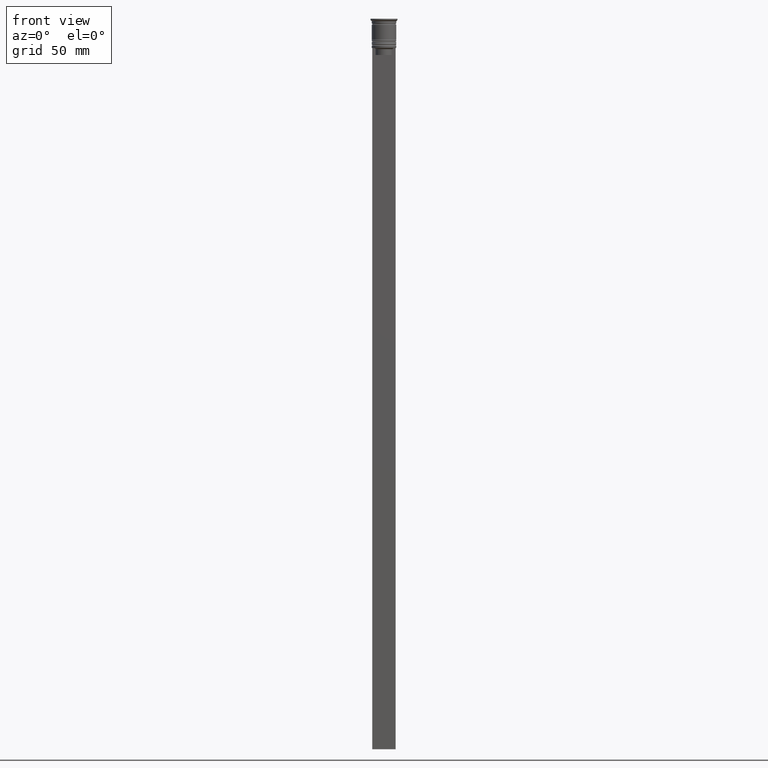
[diagram: clean part render]
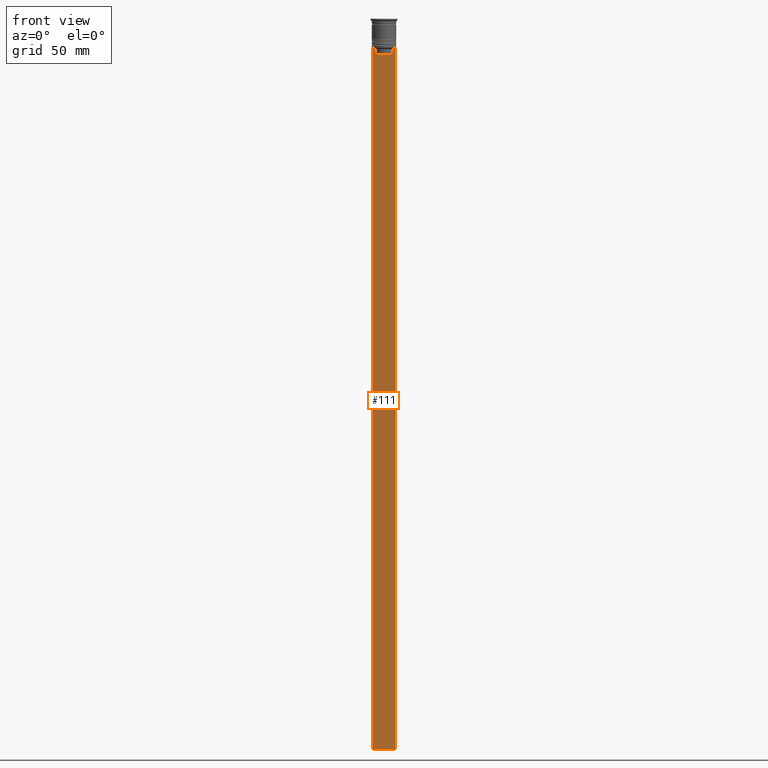
[diagram: same view with one face highlighted and labeled with its STEP entity id]
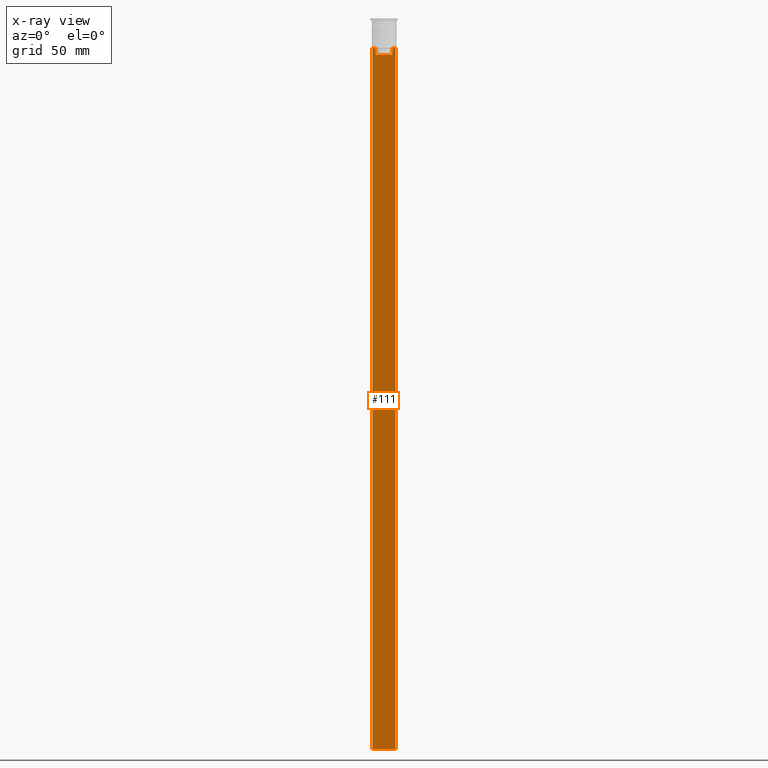
[diagram: x-ray of the same camera — body ghosted, the highlighted face saturated]
A machine part, front view. The second image highlights one B-rep face of the part: STEP entity #111.
The next image is the same camera in x-ray: the body ghosted, the highlighted face saturated — about 0% of this face is hidden behind the body in this view.
In plain terms, the highlighted planar face has unit normal (0, -1, -0).
Its self-contained STEP definition (entity closure, byte-faithful):
#3 = CARTESIAN_POINT ( 'NONE',  ( -4.999999999999999112, -0.5000000000000008882, -2.450124378879110054 ) ) ;
#9 = DIRECTION ( 'NONE',  ( 0.000000000000000000, 0.000000000000000000, -1.000000000000000000 ) ) ;
#66 = VERTEX_POINT ( 'NONE', #2124 ) ;
#102 = EDGE_CURVE ( 'NONE', #1358, #1551, #1675, .T. ) ;
#111 = ADVANCED_FACE ( 'NONE', ( #1998 ), #559, .T. ) ;
#167 = CARTESIAN_POINT ( 'NONE',  ( -4.999999999999999112, -0.5000000000000008882, -312.5000000000000000 ) ) ;
#176 = B_SPLINE_CURVE_WITH_KNOTS ( 'NONE', 3,
 ( #648, #276, #1695, #1738 ),
 .UNSPECIFIED., .F., .F.,
 ( 4, 4 ),
 ( 0.01745179617248909451, 0.01816207215777257411 ),
 .UNSPECIFIED. ) ;
#208 = VECTOR ( 'NONE', #1650, 1000.000000000000000 ) ;
#226 = VERTEX_POINT ( 'NONE', #2078 ) ;
#243 = EDGE_CURVE ( 'NONE', #66, #966, #176, .T. ) ;
#276 = CARTESIAN_POINT ( 'NONE',  ( 3.783746406711540278, -0.5000000000000008882, -12.83343003979123509 ) ) ;
#310 = DIRECTION ( 'NONE',  ( 1.000000000000000000, 0.000000000000000000, 0.000000000000000000 ) ) ;
#328 = VECTOR ( 'NONE', #337, 1000.000000000000000 ) ;
#332 = CARTESIAN_POINT ( 'NONE',  ( 5.000000000000000000, -0.5000000000000008882, -312.5000000000000000 ) ) ;
#337 = DIRECTION ( 'NONE',  ( 1.000000000000000000, 0.000000000000000000, 0.000000000000000000 ) ) ;
#360 = EDGE_CURVE ( 'NONE', #1690, #226, #485, .T. ) ;
#452 = VERTEX_POINT ( 'NONE', #167 ) ;
#485 = LINE ( 'NONE', #2173, #208 ) ;
#559 = PLANE ( 'NONE',  #1663 ) ;
#562 = ORIENTED_EDGE ( 'NONE', *, *, #102, .F. ) ;
#573 = CARTESIAN_POINT ( 'NONE',  ( -3.783746449387932476, -0.5000000000000008882, -12.83342999751715752 ) ) ;
#600 = EDGE_CURVE ( 'NONE', #2060, #1163, #1649, .T. ) ;
#648 = CARTESIAN_POINT ( 'NONE',  ( 3.615591237958188042, -0.5000000000000008882, -13.00000000000000178 ) ) ;
#710 = EDGE_CURVE ( 'NONE', #226, #1513, #1405, .T. ) ;
#747 = DIRECTION ( 'NONE',  ( 0.000000000000000000, 0.000000000000000000, -1.000000000000000000 ) ) ;
#835 = VECTOR ( 'NONE', #1399, 1000.000000000000000 ) ;
#839 = LINE ( 'NONE', #1930, #835 ) ;
#908 = LINE ( 'NONE', #1063, #1135 ) ;
#932 = ORIENTED_EDGE ( 'NONE', *, *, #1387, .F. ) ;
#935 = EDGE_CURVE ( 'NONE', #1551, #452, #1751, .T. ) ;
#936 = CARTESIAN_POINT ( 'NONE',  ( -4.999999999999999112, -0.5000000000000008882, -12.50000000000000000 ) ) ;
#966 = VERTEX_POINT ( 'NONE', #1275 ) ;
#1002 = ORIENTED_EDGE ( 'NONE', *, *, #243, .F. ) ;
#1022 = ORIENTED_EDGE ( 'NONE', *, *, #710, .F. ) ;
#1063 = CARTESIAN_POINT ( 'NONE',  ( -3.615591237958188042, -0.5000000000000008882, 0.000000000000000000 ) ) ;
#1064 = DIRECTION ( 'NONE',  ( -1.000000000000000000, 0.000000000000000000, 0.000000000000000000 ) ) ;
#1135 = VECTOR ( 'NONE', #9, 1000.000000000000000 ) ;
#1163 = VERTEX_POINT ( 'NONE', #1711 ) ;
#1208 = VECTOR ( 'NONE', #747, 1000.000000000000000 ) ;
#1221 = CARTESIAN_POINT ( 'NONE',  ( 5.000000000000000000, -0.5000000000000008882, -12.50000000000000000 ) ) ;
#1239 = CARTESIAN_POINT ( 'NONE',  ( -3.615591237958188042, -0.5000000000000008882, -13.00000000000000178 ) ) ;
#1275 = CARTESIAN_POINT ( 'NONE',  ( 4.119769411022908834, -0.5000000000000008882, -12.50000000000000000 ) ) ;
#1297 = DIRECTION ( 'NONE',  ( 0.000000000000000000, 0.000000000000000000, -1.000000000000000000 ) ) ;
#1358 = VERTEX_POINT ( 'NONE', #2161 ) ;
#1364 = VECTOR ( 'NONE', #310, 1000.000000000000000 ) ;
#1369 = EDGE_CURVE ( 'NONE', #1690, #452, #1969, .T. ) ;
#1387 = EDGE_CURVE ( 'NONE', #1513, #2060, #908, .T. ) ;
#1392 = ORIENTED_EDGE ( 'NONE', *, *, #600, .F. ) ;
#1399 = DIRECTION ( 'NONE',  ( -0.000000000000000000, -0.000000000000000000, 1.000000000000000000 ) ) ;
#1405 = B_SPLINE_CURVE_WITH_KNOTS ( 'NONE', 3,
 ( #1484, #2014, #573, #1533 ),
 .UNSPECIFIED., .F., .F.,
 ( 4, 4 ),
 ( 0.007067514914986629433, 0.007777582239375527978 ),
 .UNSPECIFIED. ) ;
#1443 = CARTESIAN_POINT ( 'NONE',  ( 5.000000000000000000, -0.5000000000000008882, -312.5000000000000000 ) ) ;
#1484 = CARTESIAN_POINT ( 'NONE',  ( -4.119769411022908834, -0.5000000000000008882, -12.50000000000000000 ) ) ;
#1506 = ORIENTED_EDGE ( 'NONE', *, *, #1967, .F. ) ;
#1513 = VERTEX_POINT ( 'NONE', #1239 ) ;
#1515 = CARTESIAN_POINT ( 'NONE',  ( 5.000000000000000000, -0.5000000000000008882, -2.450124378879110054 ) ) ;
#1533 = CARTESIAN_POINT ( 'NONE',  ( -3.615591237958188042, -0.5000000000000008882, -13.00000000000000178 ) ) ;
#1551 = VERTEX_POINT ( 'NONE', #1443 ) ;
#1649 = LINE ( 'NONE', #1971, #328 ) ;
#1650 = DIRECTION ( 'NONE',  ( 1.000000000000000000, 0.000000000000000000, 0.000000000000000000 ) ) ;
#1663 = AXIS2_PLACEMENT_3D ( 'NONE', #1515, #1823, #1297 ) ;
#1675 = LINE ( 'NONE', #1684, #1208 ) ;
#1684 = CARTESIAN_POINT ( 'NONE',  ( 5.000000000000000000, -0.5000000000000008882, -2.450124378879110054 ) ) ;
#1690 = VERTEX_POINT ( 'NONE', #936 ) ;
#1695 = CARTESIAN_POINT ( 'NONE',  ( 3.951794168112528816, -0.5000000000000008882, -12.66675163073525745 ) ) ;
#1711 = CARTESIAN_POINT ( 'NONE',  ( 3.615591237958188486, -0.5000000000000008882, -15.50000000000000000 ) ) ;
#1717 = ORIENTED_EDGE ( 'NONE', *, *, #935, .F. ) ;
#1738 = CARTESIAN_POINT ( 'NONE',  ( 4.119769411022908834, -0.5000000000000008882, -12.50000000000000000 ) ) ;
#1751 = LINE ( 'NONE', #332, #2254 ) ;
#1756 = ORIENTED_EDGE ( 'NONE', *, *, #1369, .T. ) ;
#1807 = ORIENTED_EDGE ( 'NONE', *, *, #1869, .F. ) ;
#1823 = DIRECTION ( 'NONE',  ( 0.000000000000000000, -1.000000000000000000, -0.000000000000000000 ) ) ;
#1869 = EDGE_CURVE ( 'NONE', #1163, #66, #839, .T. ) ;
#1872 = EDGE_LOOP ( 'NONE', ( #1022, #2279, #1756, #1717, #562, #1506, #1002, #1807, #1392, #932 ) ) ;
#1930 = CARTESIAN_POINT ( 'NONE',  ( 3.615591237958188042, -0.5000000000000008882, 0.000000000000000000 ) ) ;
#1967 = EDGE_CURVE ( 'NONE', #966, #1358, #2302, .T. ) ;
#1968 = CARTESIAN_POINT ( 'NONE',  ( -3.615591237958188486, -0.5000000000000008882, -15.50000000000000000 ) ) ;
#1969 = LINE ( 'NONE', #3, #2107 ) ;
#1971 = CARTESIAN_POINT ( 'NONE',  ( 0.000000000000000000, -0.5000000000000008882, -15.50000000000000000 ) ) ;
#1979 = DIRECTION ( 'NONE',  ( 0.000000000000000000, 0.000000000000000000, -1.000000000000000000 ) ) ;
#1998 = FACE_OUTER_BOUND ( 'NONE', #1872, .T. ) ;
#2014 = CARTESIAN_POINT ( 'NONE',  ( -3.951794205566887985, -0.5000000000000008882, -12.66675159355373914 ) ) ;
#2060 = VERTEX_POINT ( 'NONE', #1968 ) ;
#2078 = CARTESIAN_POINT ( 'NONE',  ( -4.119769411022908834, -0.5000000000000008882, -12.50000000000000000 ) ) ;
#2107 = VECTOR ( 'NONE', #1979, 1000.000000000000000 ) ;
#2124 = CARTESIAN_POINT ( 'NONE',  ( 3.615591237958188042, -0.5000000000000008882, -13.00000000000000178 ) ) ;
#2161 = CARTESIAN_POINT ( 'NONE',  ( 5.000000000000000000, -0.5000000000000008882, -12.50000000000000000 ) ) ;
#2173 = CARTESIAN_POINT ( 'NONE',  ( 5.000000000000000000, -0.5000000000000008882, -12.50000000000000000 ) ) ;
#2254 = VECTOR ( 'NONE', #1064, 1000.000000000000000 ) ;
#2279 = ORIENTED_EDGE ( 'NONE', *, *, #360, .F. ) ;
#2302 = LINE ( 'NONE', #1221, #1364 ) ;